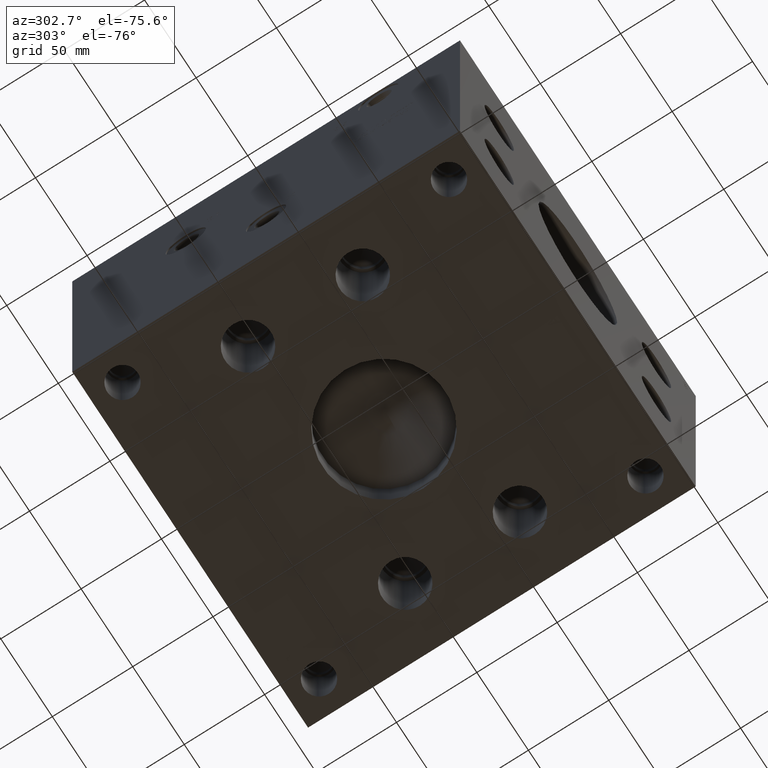
[diagram: clean part render]
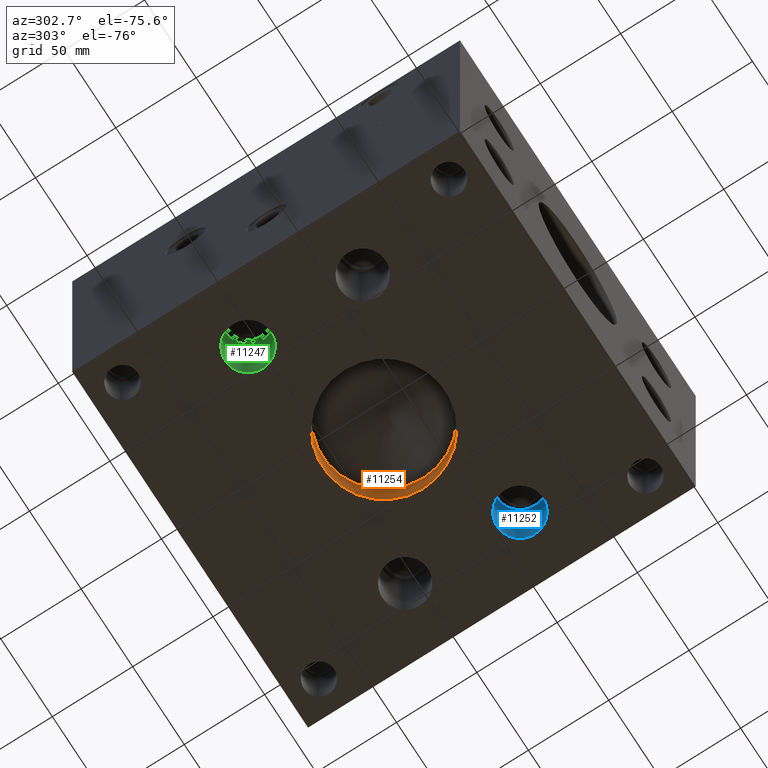
[diagram: same view with three faces highlighted in distinct colors, each labeled with its STEP entity id]
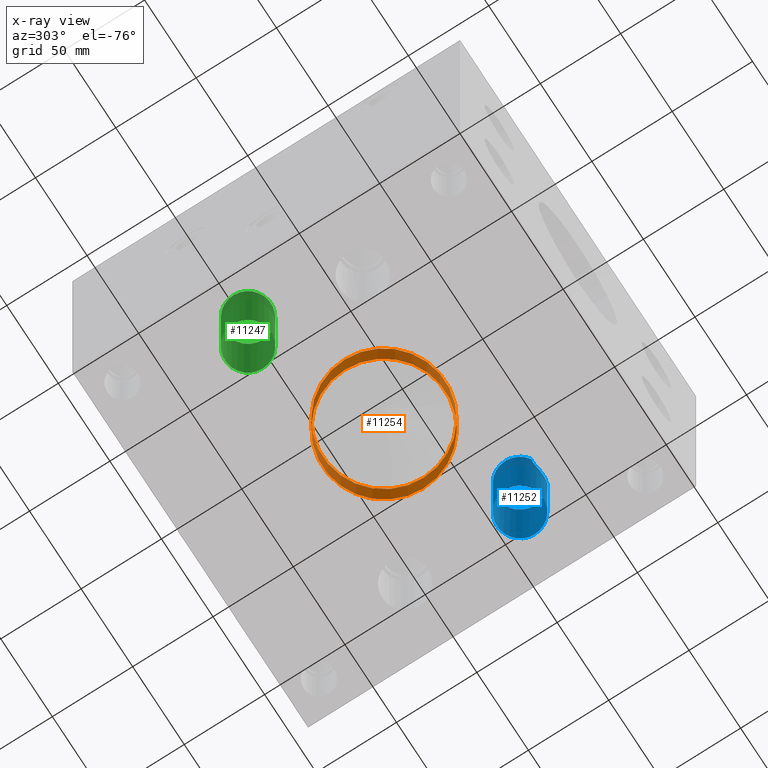
[diagram: x-ray of the same camera — body ghosted, the three highlighted faces saturated]
A machine part, auxiliary view with three faces highlighted in distinct colors.
The next image is the same camera in x-ray (body ghosted, the three faces saturated) — at least one of them is partly hidden behind the body in this view.
Their STEP definitions:

[orange] entity #11254 — the highlighted cylindrical surface (bore or boss wall) has radius 38.1 mm, axis along (0, 0, -1).
#62=CYLINDRICAL_SURFACE('',#11926,38.1);
#140=CIRCLE('',#11648,38.1);
#141=CIRCLE('',#11649,38.1);
#310=CIRCLE('',#11924,38.1);
#311=CIRCLE('',#11925,38.1);
#1308=FACE_OUTER_BOUND('',#1956,.T.);
#1956=EDGE_LOOP('',(#9633,#9634,#9635,#9636,#9637,#9638));
#3083=LINE('',#18924,#4171);
#4171=VECTOR('',#14315,38.1);
#4949=VERTEX_POINT('',#17924);
#4950=VERTEX_POINT('',#17925);
#5192=VERTEX_POINT('',#18917);
#5193=VERTEX_POINT('',#18918);
#6388=EDGE_CURVE('',#4949,#4950,#140,.T.);
#6389=EDGE_CURVE('',#4950,#4949,#141,.T.);
#6716=EDGE_CURVE('',#5192,#5193,#310,.T.);
#6718=EDGE_CURVE('',#5193,#5192,#311,.T.);
#6719=EDGE_CURVE('',#4950,#5193,#3083,.T.);
#9633=ORIENTED_EDGE('',*,*,#6388,.F.);
#9634=ORIENTED_EDGE('',*,*,#6389,.F.);
#9635=ORIENTED_EDGE('',*,*,#6719,.T.);
#9636=ORIENTED_EDGE('',*,*,#6716,.F.);
#9637=ORIENTED_EDGE('',*,*,#6718,.F.);
#9638=ORIENTED_EDGE('',*,*,#6719,.F.);
#11254=ADVANCED_FACE('',(#1308),#62,.F.);
#11648=AXIS2_PLACEMENT_3D('',#17926,#13640,#13641);
#11649=AXIS2_PLACEMENT_3D('',#17927,#13642,#13643);
#11924=AXIS2_PLACEMENT_3D('',#18919,#14308,#14309);
#11925=AXIS2_PLACEMENT_3D('',#18922,#14311,#14312);
#11926=AXIS2_PLACEMENT_3D('',#18923,#14313,#14314);
#13640=DIRECTION('center_axis',(0.,0.,1.));
#13641=DIRECTION('ref_axis',(1.,0.,0.));
#13642=DIRECTION('center_axis',(0.,0.,1.));
#13643=DIRECTION('ref_axis',(1.,0.,0.));
#14308=DIRECTION('center_axis',(0.,0.,-1.));
#14309=DIRECTION('ref_axis',(1.,0.,0.));
#14311=DIRECTION('center_axis',(0.,0.,-1.));
#14312=DIRECTION('ref_axis',(1.,0.,0.));
#14313=DIRECTION('center_axis',(0.,0.,-1.));
#14314=DIRECTION('ref_axis',(1.,0.,0.));
#14315=DIRECTION('',(0.,0.,1.));
#17924=CARTESIAN_POINT('',(152.4,120.65,0.));
#17925=CARTESIAN_POINT('',(76.2,120.65,0.));
#17926=CARTESIAN_POINT('Origin',(114.3,120.65,0.));
#17927=CARTESIAN_POINT('Origin',(114.3,120.65,0.));
#18917=CARTESIAN_POINT('',(152.4,120.65,21.99705));
#18918=CARTESIAN_POINT('',(76.2,120.65,21.99705));
#18919=CARTESIAN_POINT('Origin',(114.3,120.65,21.99705));
#18922=CARTESIAN_POINT('Origin',(114.3,120.65,21.99705));
#18923=CARTESIAN_POINT('Origin',(114.3,120.65,10.998525));
#18924=CARTESIAN_POINT('',(76.2,120.65,10.998525));

[blue] entity #11252 — the highlighted cylindrical surface (bore or boss wall) has radius 14.2875 mm, axis along (0, 0, -1).
#61=CYLINDRICAL_SURFACE('',#11922,14.2875);
#142=CIRCLE('',#11650,14.2875);
#143=CIRCLE('',#11651,14.2875);
#308=CIRCLE('',#11920,14.2875);
#309=CIRCLE('',#11921,14.2875);
#596=B_SPLINE_CURVE_WITH_KNOTS('',3,(#18883,#18884,#18885,#18886),
 .UNSPECIFIED.,.F.,.F.,(4,4),(-2.93096234224151,-2.81684730560116),
 .UNSPECIFIED.);
#597=B_SPLINE_CURVE_WITH_KNOTS('',3,(#18887,#18888,#18889,#18890,#18891,
#18892,#18893,#18894,#18895,#18896,#18897,#18898,#18899,#18900,#18901,#18902,
#18903,#18904,#18905,#18906,#18907,#18908,#18909,#18910,#18911,#18912,#18913,
#18914,#18915),.UNSPECIFIED.,.F.,.F.,(4,2,2,2,2,2,2,2,2,2,2,2,3,4),(-2.81684730560116,
-2.47948552224883,-2.14212373889651,-1.94773530974478,-1.75334688059306,
-1.58088526669682,-1.40842365280058,-1.23596203890434,-1.0635004250081,
-0.869111995856376,-0.674723566704651,-0.337361783352326,0.,0.114115039239481),
 .UNSPECIFIED.);
#1306=FACE_OUTER_BOUND('',#1954,.T.);
#1954=EDGE_LOOP('',(#9621,#9622,#9623,#9624,#9625,#9626,#9627,#9628));
#3081=LINE('',#18881,#4169);
#4169=VECTOR('',#14305,14.2875);
#4951=VERTEX_POINT('',#17928);
#4952=VERTEX_POINT('',#17929);
#5188=VERTEX_POINT('',#18869);
#5189=VERTEX_POINT('',#18873);
#5190=VERTEX_POINT('',#18875);
#5191=VERTEX_POINT('',#18882);
#6390=EDGE_CURVE('',#4951,#4952,#142,.T.);
#6391=EDGE_CURVE('',#4952,#4951,#143,.T.);
#6710=EDGE_CURVE('',#5188,#5189,#308,.T.);
#6711=EDGE_CURVE('',#5189,#5190,#309,.T.);
#6713=EDGE_CURVE('',#4952,#5189,#3081,.T.);
#6714=EDGE_CURVE('',#5188,#5191,#596,.T.);
#6715=EDGE_CURVE('',#5191,#5190,#597,.T.);
#9621=ORIENTED_EDGE('',*,*,#6390,.F.);
#9622=ORIENTED_EDGE('',*,*,#6391,.F.);
#9623=ORIENTED_EDGE('',*,*,#6713,.T.);
#9624=ORIENTED_EDGE('',*,*,#6710,.F.);
#9625=ORIENTED_EDGE('',*,*,#6714,.T.);
#9626=ORIENTED_EDGE('',*,*,#6715,.T.);
#9627=ORIENTED_EDGE('',*,*,#6711,.F.);
#9628=ORIENTED_EDGE('',*,*,#6713,.F.);
#11252=ADVANCED_FACE('',(#1306),#61,.F.);
#11650=AXIS2_PLACEMENT_3D('',#17930,#13644,#13645);
#11651=AXIS2_PLACEMENT_3D('',#17931,#13646,#13647);
#11920=AXIS2_PLACEMENT_3D('',#18874,#14299,#14300);
#11921=AXIS2_PLACEMENT_3D('',#18876,#14301,#14302);
#11922=AXIS2_PLACEMENT_3D('',#18880,#14303,#14304);
#13644=DIRECTION('center_axis',(0.,0.,1.));
#13645=DIRECTION('ref_axis',(1.,0.,0.));
#13646=DIRECTION('center_axis',(0.,0.,1.));
#13647=DIRECTION('ref_axis',(1.,0.,0.));
#14299=DIRECTION('center_axis',(0.,0.,-1.));
#14300=DIRECTION('ref_axis',(1.,0.,0.));
#14301=DIRECTION('center_axis',(0.,0.,-1.));
#14302=DIRECTION('ref_axis',(1.,0.,0.));
#14303=DIRECTION('center_axis',(0.,0.,-1.));
#14304=DIRECTION('ref_axis',(1.,0.,0.));
#14305=DIRECTION('',(0.,0.,1.));
#17928=CARTESIAN_POINT('',(204.7875,84.9376,0.));
#17929=CARTESIAN_POINT('',(176.2125,84.9376,0.));
#17930=CARTESIAN_POINT('Origin',(190.5,84.9376,0.));
#17931=CARTESIAN_POINT('Origin',(190.5,84.9376,0.));
#18869=CARTESIAN_POINT('',(183.080887654974,72.7273818094074,60.706));
#18873=CARTESIAN_POINT('',(176.2125,84.9376,60.706));
#18874=CARTESIAN_POINT('Origin',(190.5,84.9376,60.706));
#18875=CARTESIAN_POINT('',(197.919112345026,72.7273818094074,60.706));
#18876=CARTESIAN_POINT('Origin',(190.5,84.9376,60.706));
#18880=CARTESIAN_POINT('Origin',(190.5,84.9376,30.353));
#18881=CARTESIAN_POINT('',(176.2125,84.9376,30.353));
#18882=CARTESIAN_POINT('',(183.036429426233,72.7545063641289,59.5376));
#18883=CARTESIAN_POINT('Ctrl Pts',(183.080887654974,72.7273818094074,60.706));
#18884=CARTESIAN_POINT('Ctrl Pts',(183.050639704314,72.7457609194814,60.3093032480504));
#18885=CARTESIAN_POINT('Ctrl Pts',(183.036429426233,72.7545063641289,59.9179834554678));
#18886=CARTESIAN_POINT('Ctrl Pts',(183.036429426233,72.7545063641289,59.5376));
#18887=CARTESIAN_POINT('Ctrl Pts',(183.036429426233,72.7545063641289,59.5376));
#18888=CARTESIAN_POINT('Ctrl Pts',(183.036429426233,72.7545063641289,58.4130607221589));
#18889=CARTESIAN_POINT('Ctrl Pts',(183.167248044944,72.6711276972237,57.1937816163598));
#18890=CARTESIAN_POINT('Ctrl Pts',(183.725292593001,72.3543194800915,54.8454112867565));
#18891=CARTESIAN_POINT('Ctrl Pts',(184.151349475957,72.125571829067,53.7154132141601));
#18892=CARTESIAN_POINT('Ctrl Pts',(184.966313777938,71.7612016909798,52.1841306308145));
#18893=CARTESIAN_POINT('Ctrl Pts',(185.337382801346,71.6076614068814,51.596828405099));
#18894=CARTESIAN_POINT('Ctrl Pts',(186.196412508576,71.3060550700343,50.5190756040774));
#18895=CARTESIAN_POINT('Ctrl Pts',(186.685558866652,71.1589277995634,50.029308000896));
#18896=CARTESIAN_POINT('Ctrl Pts',(187.637933077462,70.9321348328311,49.2965938514004));
#18897=CARTESIAN_POINT('Ctrl Pts',(188.170933805801,70.8294551020552,48.9769155930498));
#18898=CARTESIAN_POINT('Ctrl Pts',(189.313961880702,70.6877712985276,48.5418822972659));
#18899=CARTESIAN_POINT('Ctrl Pts',(189.925127953679,70.6501,48.4290906837907));
#18900=CARTESIAN_POINT('Ctrl Pts',(191.074872046321,70.6501,48.4290906837907));
#18901=CARTESIAN_POINT('Ctrl Pts',(191.686038119298,70.6877712985276,48.5418822972659));
#18902=CARTESIAN_POINT('Ctrl Pts',(192.829066194199,70.8294551020552,48.9769155930498));
#18903=CARTESIAN_POINT('Ctrl Pts',(193.362066922538,70.9321348328311,49.2965938514004));
#18904=CARTESIAN_POINT('Ctrl Pts',(194.314441133348,71.1589277995634,50.029308000896));
#18905=CARTESIAN_POINT('Ctrl Pts',(194.803587491424,71.3060550700343,50.5190756040774));
#18906=CARTESIAN_POINT('Ctrl Pts',(195.662617198654,71.6076614068814,51.596828405099));
#18907=CARTESIAN_POINT('Ctrl Pts',(196.033686222062,71.7612016909798,52.1841306308145));
#18908=CARTESIAN_POINT('Ctrl Pts',(196.848650524043,72.125571829067,53.71541321416));
#18909=CARTESIAN_POINT('Ctrl Pts',(197.274707406999,72.3543194800915,54.8454112867565));
#18910=CARTESIAN_POINT('Ctrl Pts',(197.832751955056,72.6711276972237,57.1937816163598));
#18911=CARTESIAN_POINT('Ctrl Pts',(197.963570573767,72.7545063641289,58.4130607221589));
#18912=CARTESIAN_POINT('Ctrl Pts',(197.963570573767,72.7545063641289,59.5376));
#18913=CARTESIAN_POINT('Ctrl Pts',(197.963570573767,72.7545063641289,59.9179834641316));
#18914=CARTESIAN_POINT('Ctrl Pts',(197.949360295364,72.7457609192855,60.3093032522788));
#18915=CARTESIAN_POINT('Ctrl Pts',(197.919112345026,72.7273818094074,60.706));

[green] entity #11247 — the highlighted cylindrical surface (bore or boss wall) has radius 14.2875 mm, axis along (0, 0, -1).
#58=CYLINDRICAL_SURFACE('',#11912,14.2875);
#144=CIRCLE('',#11652,14.2875);
#145=CIRCLE('',#11653,14.2875);
#302=CIRCLE('',#11909,14.2875);
#303=CIRCLE('',#11910,14.2875);
#1301=FACE_OUTER_BOUND('',#1949,.T.);
#1949=EDGE_LOOP('',(#9595,#9596,#9597,#9598,#9599,#9600));
#3078=LINE('',#18825,#4166);
#4166=VECTOR('',#14282,14.2875);
#4953=VERTEX_POINT('',#17932);
#4954=VERTEX_POINT('',#17933);
#5179=VERTEX_POINT('',#18818);
#5180=VERTEX_POINT('',#18819);
#6392=EDGE_CURVE('',#4953,#4954,#144,.T.);
#6393=EDGE_CURVE('',#4954,#4953,#145,.T.);
#6697=EDGE_CURVE('',#5179,#5180,#302,.T.);
#6698=EDGE_CURVE('',#5180,#5179,#303,.T.);
#6700=EDGE_CURVE('',#4954,#5180,#3078,.T.);
#9595=ORIENTED_EDGE('',*,*,#6392,.F.);
#9596=ORIENTED_EDGE('',*,*,#6393,.F.);
#9597=ORIENTED_EDGE('',*,*,#6700,.T.);
#9598=ORIENTED_EDGE('',*,*,#6697,.F.);
#9599=ORIENTED_EDGE('',*,*,#6698,.F.);
#9600=ORIENTED_EDGE('',*,*,#6700,.F.);
#11247=ADVANCED_FACE('',(#1301),#58,.F.);
#11652=AXIS2_PLACEMENT_3D('',#17934,#13648,#13649);
#11653=AXIS2_PLACEMENT_3D('',#17935,#13650,#13651);
#11909=AXIS2_PLACEMENT_3D('',#18820,#14274,#14275);
#11910=AXIS2_PLACEMENT_3D('',#18821,#14276,#14277);
#11912=AXIS2_PLACEMENT_3D('',#18824,#14280,#14281);
#13648=DIRECTION('center_axis',(0.,0.,1.));
#13649=DIRECTION('ref_axis',(1.,0.,0.));
#13650=DIRECTION('center_axis',(0.,0.,1.));
#13651=DIRECTION('ref_axis',(1.,0.,0.));
#14274=DIRECTION('center_axis',(0.,0.,-1.));
#14275=DIRECTION('ref_axis',(1.,0.,0.));
#14276=DIRECTION('center_axis',(0.,0.,-1.));
#14277=DIRECTION('ref_axis',(1.,0.,0.));
#14280=DIRECTION('center_axis',(0.,0.,-1.));
#14281=DIRECTION('ref_axis',(1.,0.,0.));
#14282=DIRECTION('',(0.,0.,1.));
#17932=CARTESIAN_POINT('',(52.3875,156.3624,0.));
#17933=CARTESIAN_POINT('',(23.8125,156.3624,0.));
#17934=CARTESIAN_POINT('Origin',(38.1,156.3624,0.));
#17935=CARTESIAN_POINT('Origin',(38.1,156.3624,0.));
#18818=CARTESIAN_POINT('',(52.3875,156.3624,60.706));
#18819=CARTESIAN_POINT('',(23.8125,156.3624,60.706));
#18820=CARTESIAN_POINT('Origin',(38.1,156.3624,60.706));
#18821=CARTESIAN_POINT('Origin',(38.1,156.3624,60.706));
#18824=CARTESIAN_POINT('Origin',(38.1,156.3624,30.353));
#18825=CARTESIAN_POINT('',(23.8125,156.3624,30.353));